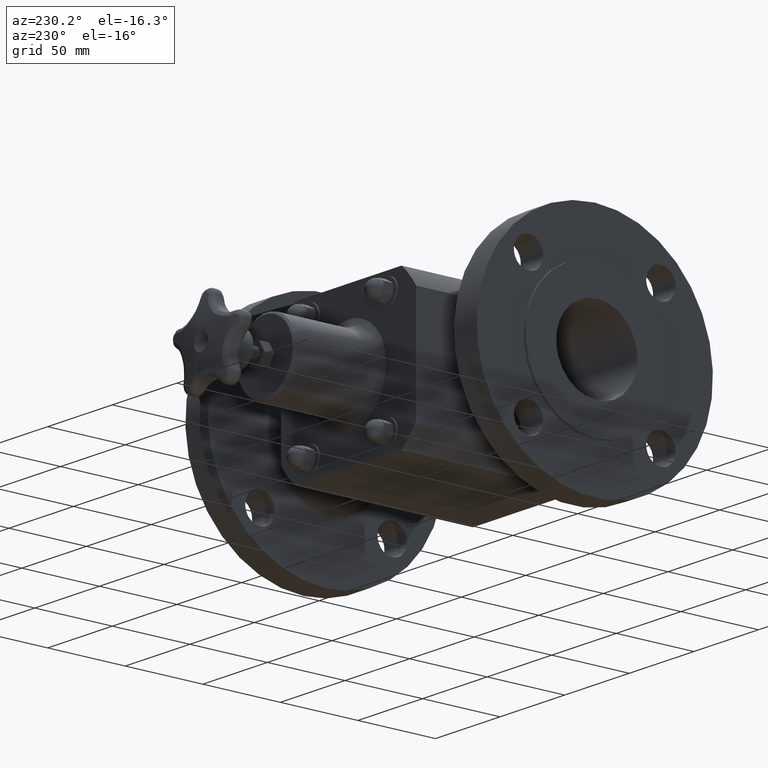
[diagram: clean part render]
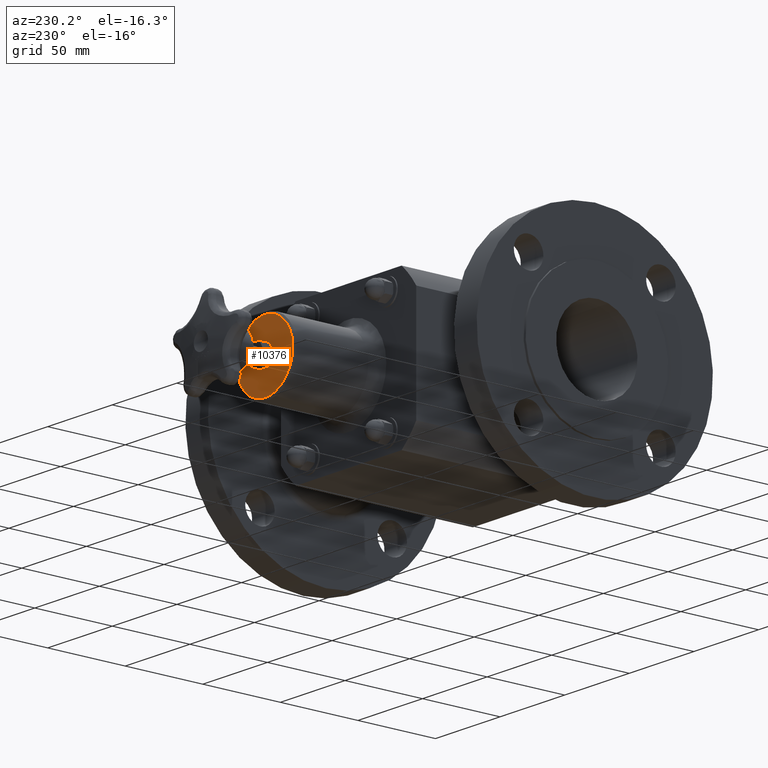
[diagram: same view with one face highlighted and labeled with its STEP entity id]
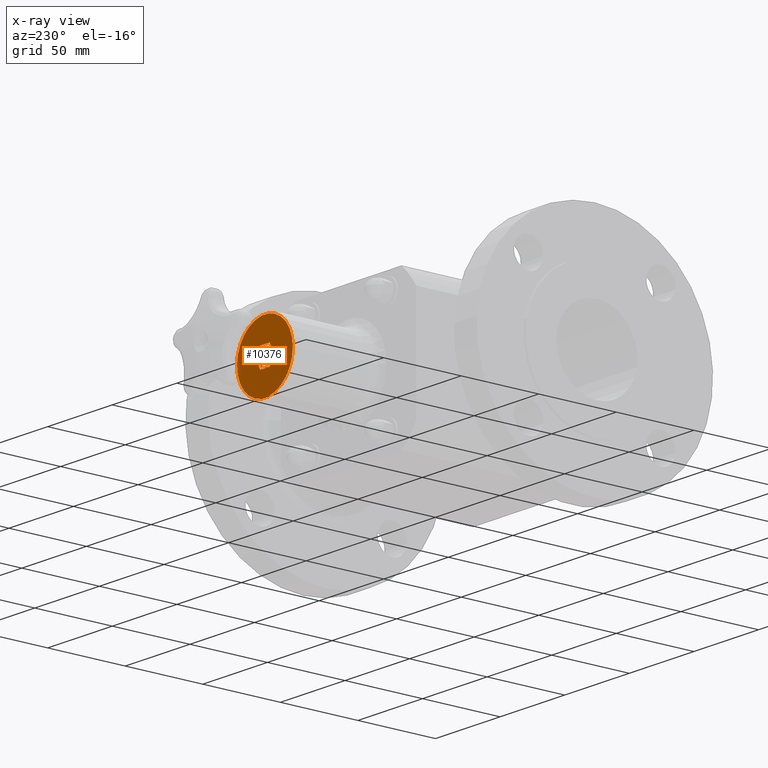
[diagram: x-ray of the same camera — body ghosted, the highlighted face saturated]
A machine part, auxiliary view. The second image highlights one B-rep face of the part: STEP entity #10376.
The next image is the same camera in x-ray: the body ghosted, the highlighted face saturated — about 3% of this face is hidden behind the body in this view.
In plain terms, the highlighted planar face has unit normal (0, 1, 0).
Its self-contained STEP definition (entity closure, byte-faithful):
#7434=CARTESIAN_POINT('',(-0.282324281633734,6.625000000000062,-7.011315E-016));
#7435=VERTEX_POINT('',#7434);
#7442=CARTESIAN_POINT('',(-0.141162140816870,6.625000000000062,0.244500000000000));
#7443=VERTEX_POINT('',#7442);
#7444=CARTESIAN_POINT('',(-0.141162140816870,6.625000000000062,0.244500000000000));
#7445=DIRECTION('',(-0.500000000000000,0.0,-0.866025403784439));
#7446=VECTOR('',#7445,0.282324281633727);
#7447=LINE('',#7444,#7446);
#7448=EDGE_CURVE('',#7443,#7435,#7447,.T.);
#7465=CARTESIAN_POINT('',(-0.141162140816870,6.625000000000062,-0.244500000000000));
#7466=VERTEX_POINT('',#7465);
#7473=CARTESIAN_POINT('',(-0.282324281633734,6.625000000000062,-7.494005E-016));
#7474=DIRECTION('',(0.500000000000001,0.0,-0.866025403784438));
#7475=VECTOR('',#7474,0.282324281633727);
#7476=LINE('',#7473,#7475);
#7477=EDGE_CURVE('',#7435,#7466,#7476,.T.);
#7489=CARTESIAN_POINT('',(0.141162140816857,6.625000000000062,-0.244500000000000));
#7490=VERTEX_POINT('',#7489);
#7497=CARTESIAN_POINT('',(-0.141162140816870,6.625000000000062,-0.244500000000000));
#7498=DIRECTION('',(1.0,0.0,0.0));
#7499=VECTOR('',#7498,0.282324281633727);
#7500=LINE('',#7497,#7499);
#7501=EDGE_CURVE('',#7466,#7490,#7500,.T.);
#7513=CARTESIAN_POINT('',(0.282324281633720,6.625000000000062,-3.813091E-016));
#7514=VERTEX_POINT('',#7513);
#7521=CARTESIAN_POINT('',(0.141162140816857,6.625000000000062,-0.244500000000000));
#7522=DIRECTION('',(0.500000000000000,0.0,0.866025403784439));
#7523=VECTOR('',#7522,0.282324281633727);
#7524=LINE('',#7521,#7523);
#7525=EDGE_CURVE('',#7490,#7514,#7524,.T.);
#7537=CARTESIAN_POINT('',(0.141162140816857,6.625000000000062,0.244500000000000));
#7538=VERTEX_POINT('',#7537);
#7545=CARTESIAN_POINT('',(0.282324281633720,6.625000000000062,-3.677614E-016));
#7546=DIRECTION('',(-0.500000000000000,0.0,0.866025403784439));
#7547=VECTOR('',#7546,0.282324281633727);
#7548=LINE('',#7545,#7547);
#7549=EDGE_CURVE('',#7514,#7538,#7548,.T.);
#7562=CARTESIAN_POINT('',(0.141162140816857,6.625000000000062,0.244500000000000));
#7563=DIRECTION('',(-1.0,0.0,0.0));
#7564=VECTOR('',#7563,0.282324281633727);
#7565=LINE('',#7562,#7564);
#7566=EDGE_CURVE('',#7538,#7443,#7565,.T.);
#10352=CARTESIAN_POINT('',(0.518749999999993,6.625000000000062,-3.492845E-016));
#10353=DIRECTION('',(0.0,1.0,0.0));
#10354=DIRECTION('',(0.0,0.0,1.0));
#10355=AXIS2_PLACEMENT_3D('',#10352,#10353,#10354);
#10356=PLANE('',#10355);
#10357=CARTESIAN_POINT('',(0.849999999999993,6.625000000000064,-3.107241E-016));
#10358=VERTEX_POINT('',#10357);
#10359=CARTESIAN_POINT('',(-6.712048E-015,6.625000000000062,-4.096716E-016));
#10360=DIRECTION('',(0.0,-1.0,0.0));
#10361=DIRECTION('',(1.0,0.0,0.0));
#10362=AXIS2_PLACEMENT_3D('',#10359,#10360,#10361);
#10363=CIRCLE('',#10362,0.850000000000000);
#10364=EDGE_CURVE('',#10358,#10358,#10363,.T.);
#10365=ORIENTED_EDGE('',*,*,#10364,.F.);
#10366=EDGE_LOOP('',(#10365));
#10367=FACE_OUTER_BOUND('',#10366,.T.);
#10368=ORIENTED_EDGE('',*,*,#7448,.T.);
#10369=ORIENTED_EDGE('',*,*,#7477,.T.);
#10370=ORIENTED_EDGE('',*,*,#7501,.T.);
#10371=ORIENTED_EDGE('',*,*,#7525,.T.);
#10372=ORIENTED_EDGE('',*,*,#7549,.T.);
#10373=ORIENTED_EDGE('',*,*,#7566,.T.);
#10374=EDGE_LOOP('',(#10368,#10369,#10370,#10371,#10372,#10373));
#10375=FACE_BOUND('',#10374,.T.);
#10376=ADVANCED_FACE('',(#10367,#10375),#10356,.T.);